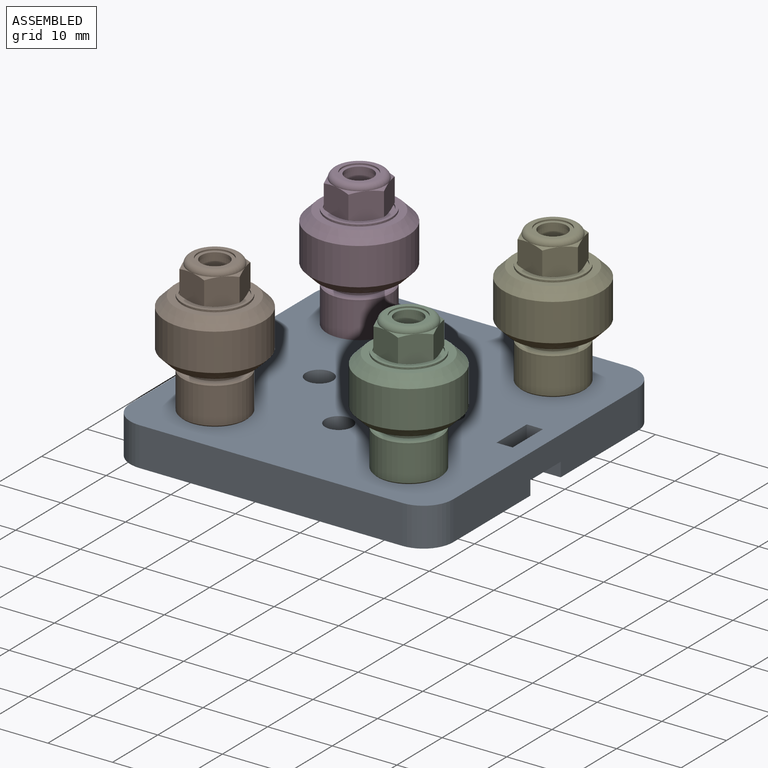
[diagram: assembled view]
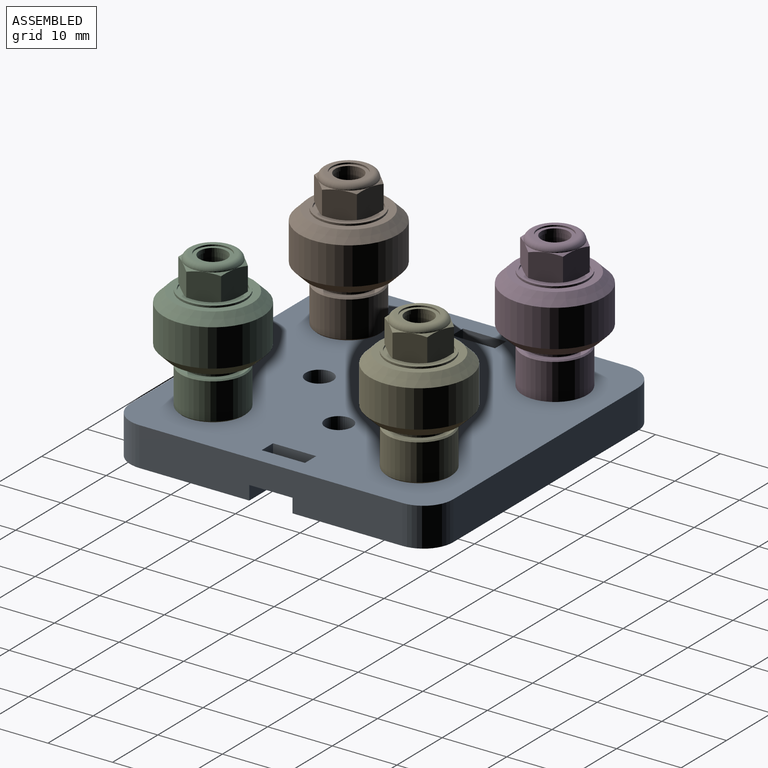
[diagram: assembled view, second angle]
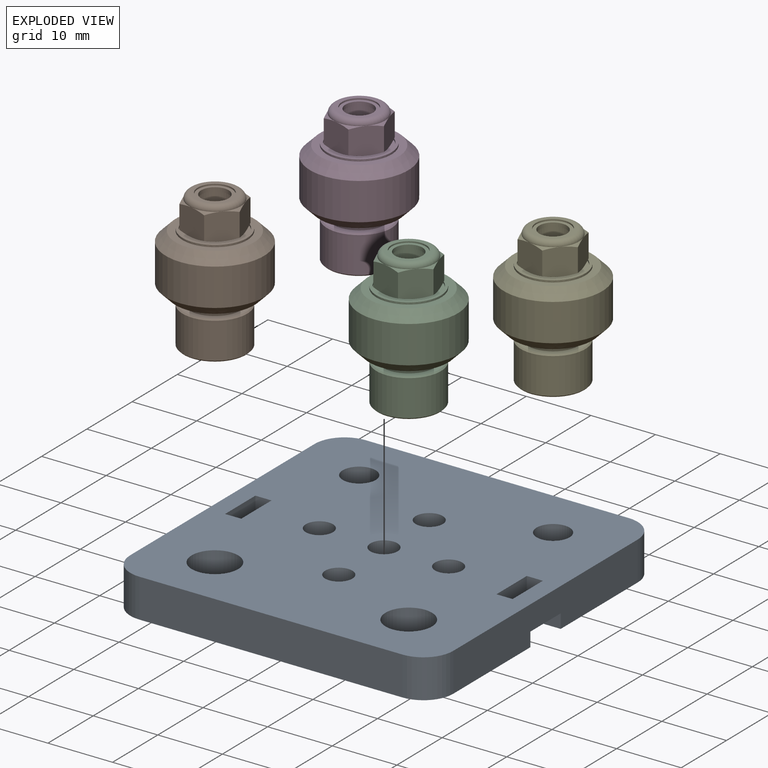
[diagram: exploded view]
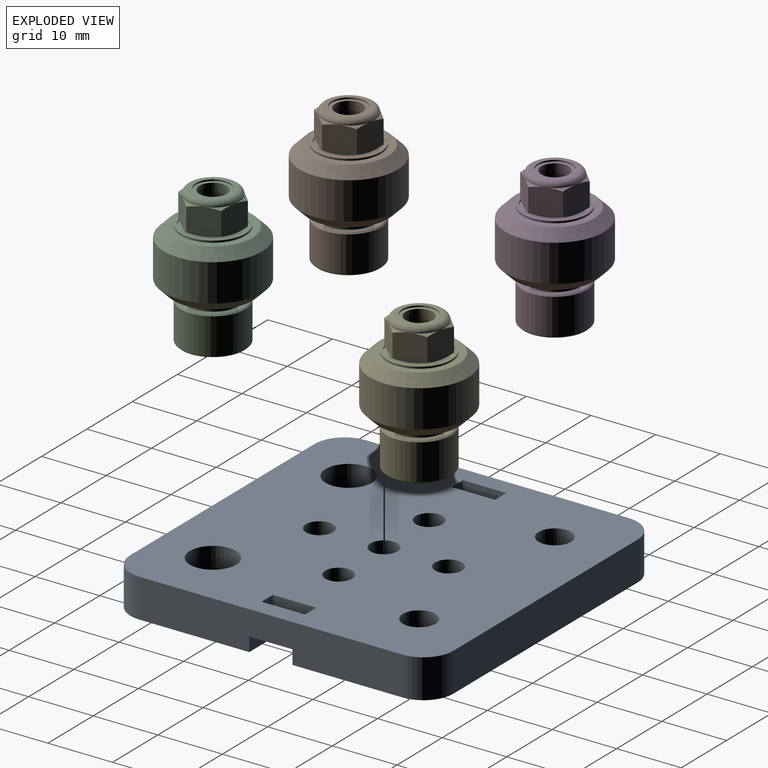
[diagram: exploded view, second angle]
ASSEMBLY  parts=5 mates=4
PART A: 37 faces, bbox 50x6x50 mm
  f0: cylinder r=2.55mm len=5.1mm, axis (0,-1,0), area 64.1mm2, adj f5,f26
  f1: cylinder r=2.55mm len=5.1mm, axis (0,-1,0), area 64.1mm2, adj f5,f24
  f2: cylinder r=3.6mm len=7.2mm, axis (0,-1,0), area 90.5mm2, adj f5,f22
  f3: cylinder r=3.6mm len=7.2mm, axis (0,-1,0), area 90.5mm2, adj f5,f20
  f4: plane 50x50mm, normal (0,1,0), area 1955.5mm2, adj f6,f7,f8,f9,f10,f11,f12,f13
  f5: plane 50x50mm, normal (0,-1,0), area 2256.5mm2, adj f0,f1,f2,f3,f6,f7,f8,f9
  f6: cylinder r=4.63mm len=6mm, axis (0,-1,0), area 43.7mm2, adj f4,f5,f7,f13
  f7: plane 40.73x6mm, normal (-1,0,0), area 229.8mm2, adj f4,f5,f6,f8,f27,f29,f30
  f8: cylinder r=4.63mm len=6mm, axis (0,-1,0), area 43.7mm2, adj f4,f5,f7,f9
  f9: plane 40.73x6mm, normal (0,0,1), area 244.4mm2, adj f4,f5,f8,f10
  f10: cylinder r=4.63mm len=6mm, axis (0,-1,0), area 43.7mm2, adj f4,f5,f9,f11
  f11: plane 40.73x6mm, normal (1,0,0), area 229.8mm2, adj f4,f5,f10,f12,f31,f32,f34
  f12: cylinder r=4.63mm len=6mm, axis (0,-1,0), area 43.7mm2, adj f4,f5,f11,f13
  f13: plane 40.73x6mm, normal (0,0,-1), area 244.4mm2, adj f4,f5,f6,f12
  f14: cylinder r=2.1mm len=6mm, axis (0,1,0), area 79.2mm2, adj f4,f5
  f15: cylinder r=2.1mm len=6mm, axis (0,1,0), area 79.2mm2, adj f4,f5
  f16: cylinder r=2.1mm len=6mm, axis (0,1,0), area 79.2mm2, adj f4,f5
  f17: cylinder r=2.1mm len=6mm, axis (0,1,0), area 79.2mm2, adj f4,f5
  f18: cylinder r=2.1mm len=6mm, axis (0,1,0), area 79.2mm2, adj f4,f5
  f19: cylinder r=6mm len=12mm, axis (0,1,0), area 75.4mm2, adj f4,f20
  f20: plane 12x12mm, normal (0,1,0), area 72.4mm2, adj f3,f19
  f21: cylinder r=6mm len=12mm, axis (0,1,0), area 75.4mm2, adj f4,f22
  f22: plane 12x12mm, normal (0,1,0), area 72.4mm2, adj f2,f21
  f23: cylinder r=5.05mm len=10.1mm, axis (0,1,0), area 63.5mm2, adj f4,f24
  f24: plane 10.1x10.1mm, normal (0,1,0), area 59.7mm2, adj f1,f23
  f25: cylinder r=5.05mm len=10.1mm, axis (0,1,0), area 63.5mm2, adj f4,f26
  f26: plane 10.1x10.1mm, normal (0,1,0), area 59.7mm2, adj f0,f25
  f27: plane 6x5.25mm, normal (0,0,1), area 21mm2, adj f4,f5,f7,f28,f30,f35
  f28: plane 6.7x6mm, normal (-1,0,0), area 40.2mm2, adj f4,f5,f27,f29
  f29: plane 6x5.25mm, normal (0,0,-1), area 21mm2, adj f4,f5,f7,f28,f30,f35
  f30: plane 6.7x2.75mm, normal (0,1,0), area 18.4mm2, adj f7,f27,f29,f35
  f31: plane 6x5.25mm, normal (0,0,1), area 21mm2, adj f4,f5,f11,f33,f34,f36
  f32: plane 6x5.25mm, normal (0,0,-1), area 21mm2, adj f4,f5,f11,f33,f34,f36
  f33: plane 6.7x6mm, normal (1,0,0), area 40.2mm2, adj f4,f5,f31,f32
  f34: plane 6.7x2.75mm, normal (0,1,0), area 18.4mm2, adj f11,f31,f32,f36
  f35: plane 6.7x3.82mm, normal (1,0,0), area 25.6mm2, adj f5,f27,f29,f30
  f36: plane 6.7x3.82mm, normal (-1,0,0), area 25.6mm2, adj f5,f31,f32,f34
PART B: 64 faces, bbox 15.6x21.8x15.6 mm
  f0: cylinder r=5mm len=10mm, axis (0,-1,0), area 9.4mm2, adj f4,f45
  f1: cylinder r=2.5mm len=14.57mm, axis (0,-1,0), area 228.9mm2, adj f24,f51
  f2: cylinder r=3.1mm len=6.2mm, axis (0,-1,0), area 5.8mm2, adj f5,f21
  f3: cylinder r=4.6mm len=9.2mm, axis (0,-1,0), area 8.7mm2, adj f4,f5
  f4: plane 10x10mm, normal (0,-1,0), area 12.1mm2, adj f0,f3
  f5: plane 9.2x9.2mm, normal (0,-1,0), area 36.3mm2, adj f2,f3
  f6: cylinder r=2.12mm len=4.25mm, axis (0,1,0), area 8mm2, adj f23,f24
  f7: cylinder r=2.65mm len=5.3mm, axis (0,1,0), area 3.8mm2, adj f22,f23
  f8: torus R=3.17mm, axis (0,1,0), area 30.3mm2, adj f9,f16,f17,f18,f19,f20,f22
  f9: cone r=4.75mm half-angle=65deg, axis (0,1,0), area 1.5mm2, adj f8,f27,f28
  f10: cone r=4mm half-angle=65deg, axis (0,-1,0), area 1.5mm2, adj f21,f25,f30
  f11: cone r=4mm half-angle=65deg, axis (0,-1,0), area 1.5mm2, adj f21,f27,f28
  f12: cone r=4mm half-angle=65deg, axis (0,-1,0), area 1.5mm2, adj f21,f26,f27
  f13: cone r=4mm half-angle=65deg, axis (0,-1,0), area 1.5mm2, adj f21,f25,f26
  f14: cone r=4mm half-angle=65deg, axis (0,-1,0), area 1.5mm2, adj f21,f28,f29
  f15: cone r=4mm half-angle=65deg, axis (0,-1,0), area 1.5mm2, adj f21,f29,f30
  f16: cone r=4.75mm half-angle=65deg, axis (0,1,0), area 1.5mm2, adj f8,f25,f30
  f17: cone r=4.75mm half-angle=65deg, axis (0,1,0), area 1.5mm2, adj f8,f25,f26
  f18: cone r=4.75mm half-angle=65deg, axis (0,1,0), area 1.5mm2, adj f8,f26,f27
  f19: cone r=4.75mm half-angle=65deg, axis (0,1,0), area 1.5mm2, adj f8,f28,f29
  f20: cone r=4.75mm half-angle=65deg, axis (0,1,0), area 1.5mm2, adj f8,f29,f30
  f21: plane 8x8mm, normal (0,1,0), area 20.1mm2, adj f2,f10,f11,f12,f13,f14,f15
  f22: plane 6.34x6.34mm, normal (0,-1,0), area 9.5mm2, adj f7,f8
  f23: plane 5.3x5.3mm, normal (0,-1,0), area 7.9mm2, adj f6,f7
  f24: plane 5x5mm, normal (0,1,0), area 5.4mm2, adj f1,f6
  f25: plane 4.76x4.53mm, normal (-0.95,0,-0.3), area 18.3mm2, adj f10,f13,f16,f17,f26,f30
  f26: plane 4.88x4.53mm, normal (-0.21,0,-0.98), area 18.3mm2, adj f12,f13,f17,f18,f25,f27
  f27: plane 4.53x3.78mm, normal (0.74,0,-0.67), area 18.3mm2, adj f9,f11,f12,f18,f26,f28
  f28: plane 4.76x4.53mm, normal (0.95,0,0.3), area 18.3mm2, adj f9,f11,f14,f19,f27,f29
  f29: plane 4.88x4.53mm, normal (0.21,0,0.98), area 18.3mm2, adj f14,f15,f19,f20,f28,f30
  f30: plane 4.53x3.78mm, normal (-0.74,0,0.67), area 18.3mm2, adj f10,f15,f16,f20,f25,f29
  f31: plane 9.6x9.6mm, normal (0,1,0), area 48.6mm2, adj f35,f36
  f32: plane 9.6x9.6mm, normal (0,-1,0), area 22.1mm2, adj f38,f50
  f33: cylinder r=5mm len=10mm, axis (0,1,0), area 175.9mm2, adj f35,f38
  f34: cylinder r=2.55mm len=5.6mm, axis (0,1,0), area 89.7mm2, adj f36,f37
  f35: cone r=5mm half-angle=45deg, axis (0,-1,0), area 8.7mm2, adj f31,f33
  f36: cone r=2.75mm half-angle=45deg, axis (0,1,0), area 4.7mm2, adj f31,f34
  f37: cone r=2.55mm half-angle=45deg, axis (0,-1,0), area 4.7mm2, adj f34,f51
  f38: cone r=4.8mm half-angle=45deg, axis (0,1,0), area 8.7mm2, adj f32,f33
  f39: plane 9.2x9.2mm, normal (0,1,0), area 36.3mm2, adj f41,f42
  f40: plane 10x10mm, normal (0,1,0), area 12.1mm2, adj f41,f43
  f41: cylinder r=4.6mm len=9.2mm, axis (0,1,0), area 8.7mm2, adj f39,f40
  f42: cylinder r=3.1mm len=6.2mm, axis (0,1,0), area 5.8mm2, adj f39,f49
  f43: cylinder r=5mm len=10mm, axis (0,1,0), area 9.4mm2, adj f40,f44
  f44: plane 12.21x12.21mm, normal (0,1,0), area 38.6mm2, adj f43,f48
  f45: plane 12.21x12.21mm, normal (0,-1,0), area 38.6mm2, adj f0,f46
  f46: cone r=6.11mm half-angle=45deg, axis (0,1,0), area 92mm2, adj f45,f47
  f47: cylinder r=7.62mm len=15.23mm, axis (0,-1,0), area 276.6mm2, adj f46,f48
  f48: cone r=7.62mm half-angle=45deg, axis (0,-1,0), area 92mm2, adj f44,f47
  f49: plane 8x8mm, normal (0,-1,0), area 20.1mm2, adj f42,f50
  f50: cylinder r=4mm len=8mm, axis (0,-1,0), area 25.1mm2, adj f32,f49
  f51: plane 5.5x5.5mm, normal (0,1,0), area 4.1mm2, adj f1,f37
  f52: plane 9.2x9.2mm, normal (0,-1,0), area 7.8mm2, adj f54,f63
  f53: plane 9.2x9.2mm, normal (0,1,0), area 7.8mm2, adj f54,f58
  f54: cylinder r=4.32mm len=8.64mm, axis (0,-1,0), area 27.1mm2, adj f52,f53
  f55: cylinder r=4mm len=8mm, axis (0,-1,0), area 25.1mm2, adj f56,f57
  f56: plane 8x8mm, normal (0,1,0), area 20.1mm2, adj f55,f59
  f57: plane 8x8mm, normal (0,-1,0), area 20.1mm2, adj f55,f61
  f58: cylinder r=4.6mm len=9.2mm, axis (0,1,0), area 8.7mm2, adj f53,f60
  f59: cylinder r=3.1mm len=6.2mm, axis (0,1,0), area 5.8mm2, adj f56,f60
  f60: plane 9.2x9.2mm, normal (0,-1,0), area 36.3mm2, adj f58,f59
  f61: cylinder r=3.1mm len=6.2mm, axis (0,-1,0), area 5.8mm2, adj f57,f62
  f62: plane 9.2x9.2mm, normal (0,1,0), area 36.3mm2, adj f61,f63
  f63: cylinder r=4.6mm len=9.2mm, axis (0,-1,0), area 8.7mm2, adj f52,f62
PART C: 64 faces, bbox 15.6x21.8x15.6 mm
  f0: cylinder r=5mm len=10mm, axis (0,-1,0), area 9.4mm2, adj f4,f45
  f1: cylinder r=2.5mm len=14.57mm, axis (0,-1,0), area 228.9mm2, adj f24,f51
  f2: cylinder r=3.1mm len=6.2mm, axis (0,-1,0), area 5.8mm2, adj f5,f21
  f3: cylinder r=4.6mm len=9.2mm, axis (0,-1,0), area 8.7mm2, adj f4,f5
  f4: plane 10x10mm, normal (0,-1,0), area 12.1mm2, adj f0,f3
  f5: plane 9.2x9.2mm, normal (0,-1,0), area 36.3mm2, adj f2,f3
  f6: cylinder r=2.12mm len=4.25mm, axis (0,1,0), area 8mm2, adj f23,f24
  f7: cylinder r=2.65mm len=5.3mm, axis (0,1,0), area 3.8mm2, adj f22,f23
  f8: torus R=3.17mm, axis (0,1,0), area 30.3mm2, adj f9,f16,f17,f18,f19,f20,f22
  f9: cone r=4.75mm half-angle=65deg, axis (0,1,0), area 1.5mm2, adj f8,f27,f28
  f10: cone r=4mm half-angle=65deg, axis (0,-1,0), area 1.5mm2, adj f21,f25,f30
  f11: cone r=4mm half-angle=65deg, axis (0,-1,0), area 1.5mm2, adj f21,f27,f28
  f12: cone r=4mm half-angle=65deg, axis (0,-1,0), area 1.5mm2, adj f21,f26,f27
  f13: cone r=4mm half-angle=65deg, axis (0,-1,0), area 1.5mm2, adj f21,f25,f26
  f14: cone r=4mm half-angle=65deg, axis (0,-1,0), area 1.5mm2, adj f21,f28,f29
  f15: cone r=4mm half-angle=65deg, axis (0,-1,0), area 1.5mm2, adj f21,f29,f30
  f16: cone r=4.75mm half-angle=65deg, axis (0,1,0), area 1.5mm2, adj f8,f25,f30
  f17: cone r=4.75mm half-angle=65deg, axis (0,1,0), area 1.5mm2, adj f8,f25,f26
  f18: cone r=4.75mm half-angle=65deg, axis (0,1,0), area 1.5mm2, adj f8,f26,f27
  f19: cone r=4.75mm half-angle=65deg, axis (0,1,0), area 1.5mm2, adj f8,f28,f29
  f20: cone r=4.75mm half-angle=65deg, axis (0,1,0), area 1.5mm2, adj f8,f29,f30
  f21: plane 8x8mm, normal (0,1,0), area 20.1mm2, adj f2,f10,f11,f12,f13,f14,f15
  f22: plane 6.34x6.34mm, normal (0,-1,0), area 9.5mm2, adj f7,f8
  f23: plane 5.3x5.3mm, normal (0,-1,0), area 7.9mm2, adj f6,f7
  f24: plane 5x5mm, normal (0,1,0), area 5.4mm2, adj f1,f6
  f25: plane 4.76x4.53mm, normal (-0.95,0,-0.3), area 18.3mm2, adj f10,f13,f16,f17,f26,f30
  f26: plane 4.88x4.53mm, normal (-0.21,0,-0.98), area 18.3mm2, adj f12,f13,f17,f18,f25,f27
  f27: plane 4.53x3.78mm, normal (0.74,0,-0.67), area 18.3mm2, adj f9,f11,f12,f18,f26,f28
  f28: plane 4.76x4.53mm, normal (0.95,0,0.3), area 18.3mm2, adj f9,f11,f14,f19,f27,f29
  f29: plane 4.88x4.53mm, normal (0.21,0,0.98), area 18.3mm2, adj f14,f15,f19,f20,f28,f30
  f30: plane 4.53x3.78mm, normal (-0.74,0,0.67), area 18.3mm2, adj f10,f15,f16,f20,f25,f29
  f31: plane 9.6x9.6mm, normal (0,1,0), area 48.6mm2, adj f35,f36
  f32: plane 9.6x9.6mm, normal (0,-1,0), area 22.1mm2, adj f38,f50
  f33: cylinder r=5mm len=10mm, axis (0,1,0), area 175.9mm2, adj f35,f38
  f34: cylinder r=2.55mm len=5.6mm, axis (0,1,0), area 89.7mm2, adj f36,f37
  f35: cone r=5mm half-angle=45deg, axis (0,-1,0), area 8.7mm2, adj f31,f33
  f36: cone r=2.75mm half-angle=45deg, axis (0,1,0), area 4.7mm2, adj f31,f34
  f37: cone r=2.55mm half-angle=45deg, axis (0,-1,0), area 4.7mm2, adj f34,f51
  f38: cone r=4.8mm half-angle=45deg, axis (0,1,0), area 8.7mm2, adj f32,f33
  f39: plane 9.2x9.2mm, normal (0,1,0), area 36.3mm2, adj f41,f42
  f40: plane 10x10mm, normal (0,1,0), area 12.1mm2, adj f41,f43
  f41: cylinder r=4.6mm len=9.2mm, axis (0,1,0), area 8.7mm2, adj f39,f40
  f42: cylinder r=3.1mm len=6.2mm, axis (0,1,0), area 5.8mm2, adj f39,f49
  f43: cylinder r=5mm len=10mm, axis (0,1,0), area 9.4mm2, adj f40,f44
  f44: plane 12.21x12.21mm, normal (0,1,0), area 38.6mm2, adj f43,f48
  f45: plane 12.21x12.21mm, normal (0,-1,0), area 38.6mm2, adj f0,f46
  f46: cone r=6.11mm half-angle=45deg, axis (0,1,0), area 92mm2, adj f45,f47
  f47: cylinder r=7.62mm len=15.23mm, axis (0,-1,0), area 276.6mm2, adj f46,f48
  f48: cone r=7.62mm half-angle=45deg, axis (0,-1,0), area 92mm2, adj f44,f47
  f49: plane 8x8mm, normal (0,-1,0), area 20.1mm2, adj f42,f50
  f50: cylinder r=4mm len=8mm, axis (0,-1,0), area 25.1mm2, adj f32,f49
  f51: plane 5.5x5.5mm, normal (0,1,0), area 4.1mm2, adj f1,f37
  f52: plane 9.2x9.2mm, normal (0,-1,0), area 7.8mm2, adj f54,f63
  f53: plane 9.2x9.2mm, normal (0,1,0), area 7.8mm2, adj f54,f58
  f54: cylinder r=4.32mm len=8.64mm, axis (0,-1,0), area 27.1mm2, adj f52,f53
  f55: cylinder r=4mm len=8mm, axis (0,-1,0), area 25.1mm2, adj f56,f57
  f56: plane 8x8mm, normal (0,1,0), area 20.1mm2, adj f55,f59
  f57: plane 8x8mm, normal (0,-1,0), area 20.1mm2, adj f55,f61
  f58: cylinder r=4.6mm len=9.2mm, axis (0,1,0), area 8.7mm2, adj f53,f60
  f59: cylinder r=3.1mm len=6.2mm, axis (0,1,0), area 5.8mm2, adj f56,f60
  f60: plane 9.2x9.2mm, normal (0,-1,0), area 36.3mm2, adj f58,f59
  f61: cylinder r=3.1mm len=6.2mm, axis (0,-1,0), area 5.8mm2, adj f57,f62
  f62: plane 9.2x9.2mm, normal (0,1,0), area 36.3mm2, adj f61,f63
  f63: cylinder r=4.6mm len=9.2mm, axis (0,-1,0), area 8.7mm2, adj f52,f62
PART D: 64 faces, bbox 15.6x21.8x15.6 mm
  f0: cylinder r=5mm len=10mm, axis (0,-1,0), area 9.4mm2, adj f4,f45
  f1: cylinder r=2.5mm len=14.57mm, axis (0,-1,0), area 228.9mm2, adj f24,f51
  f2: cylinder r=3.1mm len=6.2mm, axis (0,-1,0), area 5.8mm2, adj f5,f21
  f3: cylinder r=4.6mm len=9.2mm, axis (0,-1,0), area 8.7mm2, adj f4,f5
  f4: plane 10x10mm, normal (0,-1,0), area 12.1mm2, adj f0,f3
  f5: plane 9.2x9.2mm, normal (0,-1,0), area 36.3mm2, adj f2,f3
  f6: cylinder r=2.12mm len=4.25mm, axis (0,1,0), area 8mm2, adj f23,f24
  f7: cylinder r=2.65mm len=5.3mm, axis (0,1,0), area 3.8mm2, adj f22,f23
  f8: torus R=3.17mm, axis (0,1,0), area 30.3mm2, adj f9,f16,f17,f18,f19,f20,f22
  f9: cone r=4.75mm half-angle=65deg, axis (0,1,0), area 1.5mm2, adj f8,f27,f28
  f10: cone r=4mm half-angle=65deg, axis (0,-1,0), area 1.5mm2, adj f21,f25,f30
  f11: cone r=4mm half-angle=65deg, axis (0,-1,0), area 1.5mm2, adj f21,f27,f28
  f12: cone r=4mm half-angle=65deg, axis (0,-1,0), area 1.5mm2, adj f21,f26,f27
  f13: cone r=4mm half-angle=65deg, axis (0,-1,0), area 1.5mm2, adj f21,f25,f26
  f14: cone r=4mm half-angle=65deg, axis (0,-1,0), area 1.5mm2, adj f21,f28,f29
  f15: cone r=4mm half-angle=65deg, axis (0,-1,0), area 1.5mm2, adj f21,f29,f30
  f16: cone r=4.75mm half-angle=65deg, axis (0,1,0), area 1.5mm2, adj f8,f25,f30
  f17: cone r=4.75mm half-angle=65deg, axis (0,1,0), area 1.5mm2, adj f8,f25,f26
  f18: cone r=4.75mm half-angle=65deg, axis (0,1,0), area 1.5mm2, adj f8,f26,f27
  f19: cone r=4.75mm half-angle=65deg, axis (0,1,0), area 1.5mm2, adj f8,f28,f29
  f20: cone r=4.75mm half-angle=65deg, axis (0,1,0), area 1.5mm2, adj f8,f29,f30
  f21: plane 8x8mm, normal (0,1,0), area 20.1mm2, adj f2,f10,f11,f12,f13,f14,f15
  f22: plane 6.34x6.34mm, normal (0,-1,0), area 9.5mm2, adj f7,f8
  f23: plane 5.3x5.3mm, normal (0,-1,0), area 7.9mm2, adj f6,f7
  f24: plane 5x5mm, normal (0,1,0), area 5.4mm2, adj f1,f6
  f25: plane 4.76x4.53mm, normal (-0.95,0,-0.3), area 18.3mm2, adj f10,f13,f16,f17,f26,f30
  f26: plane 4.88x4.53mm, normal (-0.21,0,-0.98), area 18.3mm2, adj f12,f13,f17,f18,f25,f27
  f27: plane 4.53x3.78mm, normal (0.74,0,-0.67), area 18.3mm2, adj f9,f11,f12,f18,f26,f28
  f28: plane 4.76x4.53mm, normal (0.95,0,0.3), area 18.3mm2, adj f9,f11,f14,f19,f27,f29
  f29: plane 4.88x4.53mm, normal (0.21,0,0.98), area 18.3mm2, adj f14,f15,f19,f20,f28,f30
  f30: plane 4.53x3.78mm, normal (-0.74,0,0.67), area 18.3mm2, adj f10,f15,f16,f20,f25,f29
  f31: plane 9.6x9.6mm, normal (0,1,0), area 48.6mm2, adj f35,f36
  f32: plane 9.6x9.6mm, normal (0,-1,0), area 22.1mm2, adj f38,f50
  f33: cylinder r=5mm len=10mm, axis (0,1,0), area 175.9mm2, adj f35,f38
  f34: cylinder r=2.55mm len=5.6mm, axis (0,1,0), area 89.7mm2, adj f36,f37
  f35: cone r=5mm half-angle=45deg, axis (0,-1,0), area 8.7mm2, adj f31,f33
  f36: cone r=2.75mm half-angle=45deg, axis (0,1,0), area 4.7mm2, adj f31,f34
  f37: cone r=2.55mm half-angle=45deg, axis (0,-1,0), area 4.7mm2, adj f34,f51
  f38: cone r=4.8mm half-angle=45deg, axis (0,1,0), area 8.7mm2, adj f32,f33
  f39: plane 9.2x9.2mm, normal (0,1,0), area 36.3mm2, adj f41,f42
  f40: plane 10x10mm, normal (0,1,0), area 12.1mm2, adj f41,f43
  f41: cylinder r=4.6mm len=9.2mm, axis (0,1,0), area 8.7mm2, adj f39,f40
  f42: cylinder r=3.1mm len=6.2mm, axis (0,1,0), area 5.8mm2, adj f39,f49
  f43: cylinder r=5mm len=10mm, axis (0,1,0), area 9.4mm2, adj f40,f44
  f44: plane 12.21x12.21mm, normal (0,1,0), area 38.6mm2, adj f43,f48
  f45: plane 12.21x12.21mm, normal (0,-1,0), area 38.6mm2, adj f0,f46
  f46: cone r=6.11mm half-angle=45deg, axis (0,1,0), area 92mm2, adj f45,f47
  f47: cylinder r=7.62mm len=15.23mm, axis (0,-1,0), area 276.6mm2, adj f46,f48
  f48: cone r=7.62mm half-angle=45deg, axis (0,-1,0), area 92mm2, adj f44,f47
  f49: plane 8x8mm, normal (0,-1,0), area 20.1mm2, adj f42,f50
  f50: cylinder r=4mm len=8mm, axis (0,-1,0), area 25.1mm2, adj f32,f49
  f51: plane 5.5x5.5mm, normal (0,1,0), area 4.1mm2, adj f1,f37
  f52: plane 9.2x9.2mm, normal (0,-1,0), area 7.8mm2, adj f54,f63
  f53: plane 9.2x9.2mm, normal (0,1,0), area 7.8mm2, adj f54,f58
  f54: cylinder r=4.32mm len=8.64mm, axis (0,-1,0), area 27.1mm2, adj f52,f53
  f55: cylinder r=4mm len=8mm, axis (0,-1,0), area 25.1mm2, adj f56,f57
  f56: plane 8x8mm, normal (0,1,0), area 20.1mm2, adj f55,f59
  f57: plane 8x8mm, normal (0,-1,0), area 20.1mm2, adj f55,f61
  f58: cylinder r=4.6mm len=9.2mm, axis (0,1,0), area 8.7mm2, adj f53,f60
  f59: cylinder r=3.1mm len=6.2mm, axis (0,1,0), area 5.8mm2, adj f56,f60
  f60: plane 9.2x9.2mm, normal (0,-1,0), area 36.3mm2, adj f58,f59
  f61: cylinder r=3.1mm len=6.2mm, axis (0,-1,0), area 5.8mm2, adj f57,f62
  f62: plane 9.2x9.2mm, normal (0,1,0), area 36.3mm2, adj f61,f63
  f63: cylinder r=4.6mm len=9.2mm, axis (0,-1,0), area 8.7mm2, adj f52,f62
PART E: 64 faces, bbox 15.6x21.8x15.6 mm
  f0: cylinder r=5mm len=10mm, axis (0,-1,0), area 9.4mm2, adj f4,f45
  f1: cylinder r=2.5mm len=14.57mm, axis (0,-1,0), area 228.9mm2, adj f24,f51
  f2: cylinder r=3.1mm len=6.2mm, axis (0,-1,0), area 5.8mm2, adj f5,f21
  f3: cylinder r=4.6mm len=9.2mm, axis (0,-1,0), area 8.7mm2, adj f4,f5
  f4: plane 10x10mm, normal (0,-1,0), area 12.1mm2, adj f0,f3
  f5: plane 9.2x9.2mm, normal (0,-1,0), area 36.3mm2, adj f2,f3
  f6: cylinder r=2.12mm len=4.25mm, axis (0,1,0), area 8mm2, adj f23,f24
  f7: cylinder r=2.65mm len=5.3mm, axis (0,1,0), area 3.8mm2, adj f22,f23
  f8: torus R=3.17mm, axis (0,1,0), area 30.3mm2, adj f9,f16,f17,f18,f19,f20,f22
  f9: cone r=4.75mm half-angle=65deg, axis (0,1,0), area 1.5mm2, adj f8,f27,f28
  f10: cone r=4mm half-angle=65deg, axis (0,-1,0), area 1.5mm2, adj f21,f25,f30
  f11: cone r=4mm half-angle=65deg, axis (0,-1,0), area 1.5mm2, adj f21,f27,f28
  f12: cone r=4mm half-angle=65deg, axis (0,-1,0), area 1.5mm2, adj f21,f26,f27
  f13: cone r=4mm half-angle=65deg, axis (0,-1,0), area 1.5mm2, adj f21,f25,f26
  f14: cone r=4mm half-angle=65deg, axis (0,-1,0), area 1.5mm2, adj f21,f28,f29
  f15: cone r=4mm half-angle=65deg, axis (0,-1,0), area 1.5mm2, adj f21,f29,f30
  f16: cone r=4.75mm half-angle=65deg, axis (0,1,0), area 1.5mm2, adj f8,f25,f30
  f17: cone r=4.75mm half-angle=65deg, axis (0,1,0), area 1.5mm2, adj f8,f25,f26
  f18: cone r=4.75mm half-angle=65deg, axis (0,1,0), area 1.5mm2, adj f8,f26,f27
  f19: cone r=4.75mm half-angle=65deg, axis (0,1,0), area 1.5mm2, adj f8,f28,f29
  f20: cone r=4.75mm half-angle=65deg, axis (0,1,0), area 1.5mm2, adj f8,f29,f30
  f21: plane 8x8mm, normal (0,1,0), area 20.1mm2, adj f2,f10,f11,f12,f13,f14,f15
  f22: plane 6.34x6.34mm, normal (0,-1,0), area 9.5mm2, adj f7,f8
  f23: plane 5.3x5.3mm, normal (0,-1,0), area 7.9mm2, adj f6,f7
  f24: plane 5x5mm, normal (0,1,0), area 5.4mm2, adj f1,f6
  f25: plane 4.76x4.53mm, normal (-0.95,0,-0.3), area 18.3mm2, adj f10,f13,f16,f17,f26,f30
  f26: plane 4.88x4.53mm, normal (-0.21,0,-0.98), area 18.3mm2, adj f12,f13,f17,f18,f25,f27
  f27: plane 4.53x3.78mm, normal (0.74,0,-0.67), area 18.3mm2, adj f9,f11,f12,f18,f26,f28
  f28: plane 4.76x4.53mm, normal (0.95,0,0.3), area 18.3mm2, adj f9,f11,f14,f19,f27,f29
  f29: plane 4.88x4.53mm, normal (0.21,0,0.98), area 18.3mm2, adj f14,f15,f19,f20,f28,f30
  f30: plane 4.53x3.78mm, normal (-0.74,0,0.67), area 18.3mm2, adj f10,f15,f16,f20,f25,f29
  f31: plane 9.6x9.6mm, normal (0,1,0), area 48.6mm2, adj f35,f36
  f32: plane 9.6x9.6mm, normal (0,-1,0), area 22.1mm2, adj f38,f50
  f33: cylinder r=5mm len=10mm, axis (0,1,0), area 175.9mm2, adj f35,f38
  f34: cylinder r=2.55mm len=5.6mm, axis (0,1,0), area 89.7mm2, adj f36,f37
  f35: cone r=5mm half-angle=45deg, axis (0,-1,0), area 8.7mm2, adj f31,f33
  f36: cone r=2.75mm half-angle=45deg, axis (0,1,0), area 4.7mm2, adj f31,f34
  f37: cone r=2.55mm half-angle=45deg, axis (0,-1,0), area 4.7mm2, adj f34,f51
  f38: cone r=4.8mm half-angle=45deg, axis (0,1,0), area 8.7mm2, adj f32,f33
  f39: plane 9.2x9.2mm, normal (0,1,0), area 36.3mm2, adj f41,f42
  f40: plane 10x10mm, normal (0,1,0), area 12.1mm2, adj f41,f43
  f41: cylinder r=4.6mm len=9.2mm, axis (0,1,0), area 8.7mm2, adj f39,f40
  f42: cylinder r=3.1mm len=6.2mm, axis (0,1,0), area 5.8mm2, adj f39,f49
  f43: cylinder r=5mm len=10mm, axis (0,1,0), area 9.4mm2, adj f40,f44
  f44: plane 12.21x12.21mm, normal (0,1,0), area 38.6mm2, adj f43,f48
  f45: plane 12.21x12.21mm, normal (0,-1,0), area 38.6mm2, adj f0,f46
  f46: cone r=6.11mm half-angle=45deg, axis (0,1,0), area 92mm2, adj f45,f47
  f47: cylinder r=7.62mm len=15.23mm, axis (0,-1,0), area 276.6mm2, adj f46,f48
  f48: cone r=7.62mm half-angle=45deg, axis (0,-1,0), area 92mm2, adj f44,f47
  f49: plane 8x8mm, normal (0,-1,0), area 20.1mm2, adj f42,f50
  f50: cylinder r=4mm len=8mm, axis (0,-1,0), area 25.1mm2, adj f32,f49
  f51: plane 5.5x5.5mm, normal (0,1,0), area 4.1mm2, adj f1,f37
  f52: plane 9.2x9.2mm, normal (0,-1,0), area 7.8mm2, adj f54,f63
  f53: plane 9.2x9.2mm, normal (0,1,0), area 7.8mm2, adj f54,f58
  f54: cylinder r=4.32mm len=8.64mm, axis (0,-1,0), area 27.1mm2, adj f52,f53
  f55: cylinder r=4mm len=8mm, axis (0,-1,0), area 25.1mm2, adj f56,f57
  f56: plane 8x8mm, normal (0,1,0), area 20.1mm2, adj f55,f59
  f57: plane 8x8mm, normal (0,-1,0), area 20.1mm2, adj f55,f61
  f58: cylinder r=4.6mm len=9.2mm, axis (0,1,0), area 8.7mm2, adj f53,f60
  f59: cylinder r=3.1mm len=6.2mm, axis (0,1,0), area 5.8mm2, adj f56,f60
  f60: plane 9.2x9.2mm, normal (0,-1,0), area 36.3mm2, adj f58,f59
  f61: cylinder r=3.1mm len=6.2mm, axis (0,-1,0), area 5.8mm2, adj f57,f62
  f62: plane 9.2x9.2mm, normal (0,1,0), area 36.3mm2, adj f61,f63
  f63: cylinder r=4.6mm len=9.2mm, axis (0,-1,0), area 8.7mm2, adj f52,f62
PLACE A rot(axis=(-1,0,0),90deg) t=(0,0,6)mm
PLACE B rot(axis=(-1,0,0),90deg) t=(0,0,6)mm
PLACE C rot(axis=(-1,0,0),90deg) t=(0,-31.9,6)mm
PLACE D rot(axis=(-1,0,0),90deg) t=(0,0,5.8)mm
PLACE E rot(axis=(-1,0,0),90deg) t=(0,31.9,6)mm
MATE fastened A.f2 <-> C.f0  axis (0,0,1) through (15,-15.95,6)mm
MATE fastened A.f1 <-> E.f0  axis (0,0,1) through (15,15.95,6)mm
MATE fastened A.f0 <-> D.f0  axis (0,0,1) through (-15,15.95,6)mm
MATE fastened A.f3 <-> B.f0  axis (0,0,1) through (-15,-15.95,6)mm
